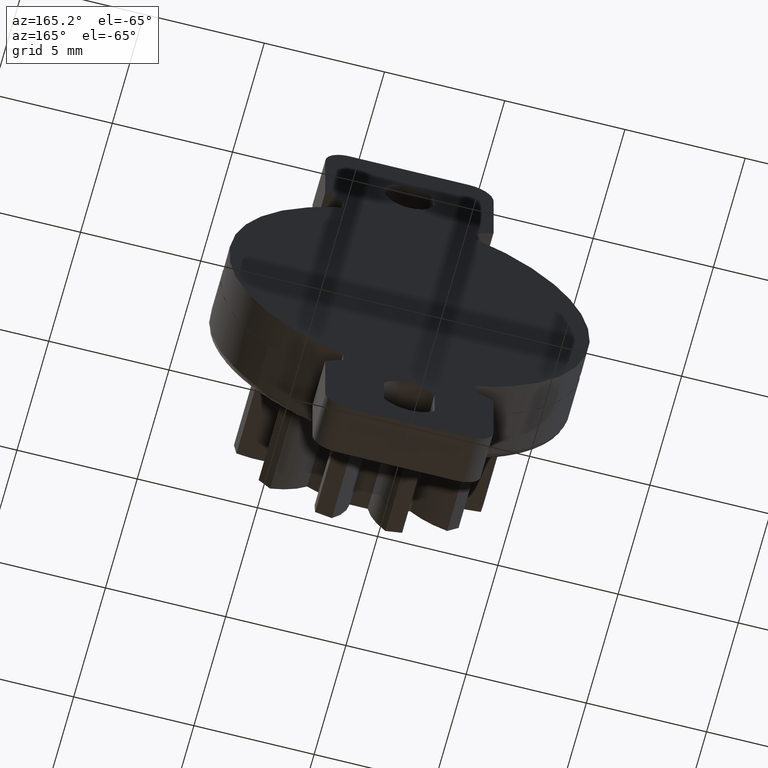
[diagram: clean part render]
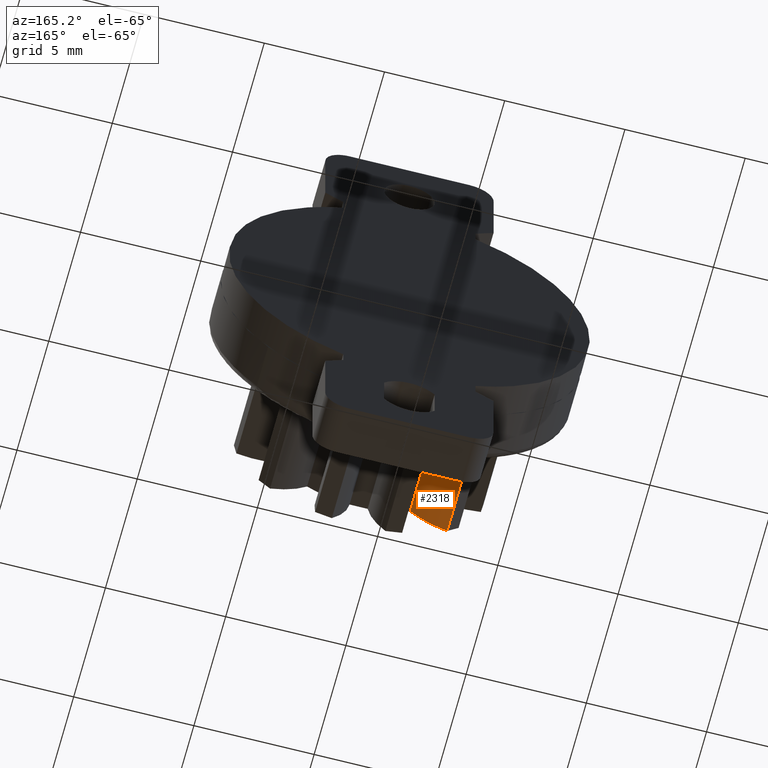
[diagram: same view with one face highlighted and labeled with its STEP entity id]
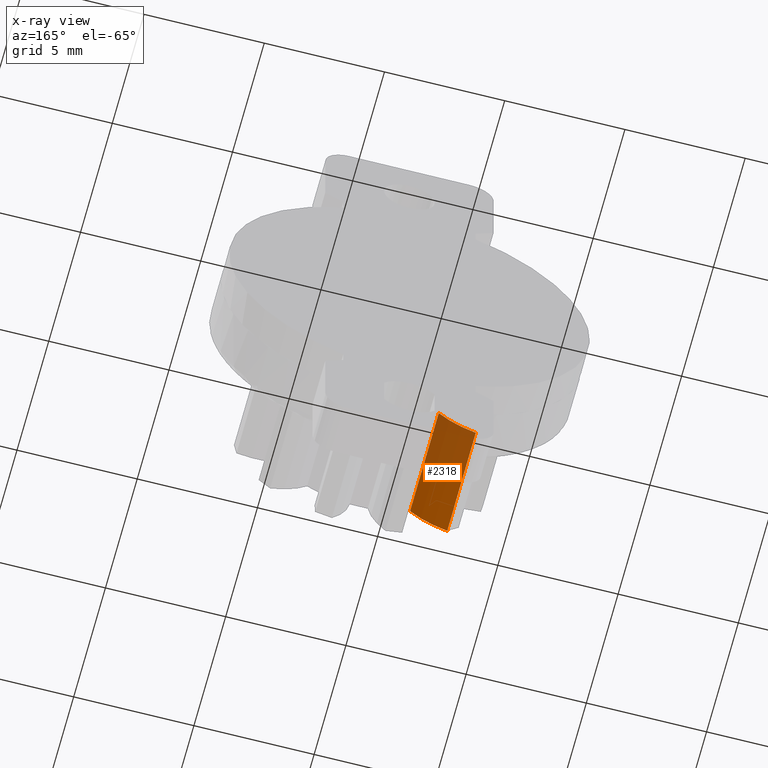
[diagram: x-ray of the same camera — body ghosted, the highlighted face saturated]
A machine part, auxiliary view. The second image highlights one B-rep face of the part: STEP entity #2318.
The next image is the same camera in x-ray: the body ghosted, the highlighted face saturated — about 54% of this face is hidden behind the body in this view.
In plain terms, the highlighted face is a freeform B-spline surface patch.
Its self-contained STEP definition (entity closure, byte-faithful):
#659=CARTESIAN_POINT('',(-3.682784727053384,-8.0,-3.671116540534010));
#660=VERTEX_POINT('',#659);
#674=CARTESIAN_POINT('',(-2.143879086929061,-8.0,-2.638897963284715));
#675=VERTEX_POINT('',#674);
#676=CARTESIAN_POINT('',(-3.682784727053387,-8.0,-3.671116540534007));
#677=CARTESIAN_POINT('',(-2.754975716603339,-8.0,-3.391096041539490));
#678=CARTESIAN_POINT('',(-2.143879073111832,-8.0,-2.638897974510035));
#686=(BOUNDED_CURVE()B_SPLINE_CURVE(2,(#676,#677,#678),.UNSPECIFIED.,.F.,.U.)CURVE()GEOMETRIC_REPRESENTATION_ITEM()QUASI_UNIFORM_CURVE()RATIONAL_B_SPLINE_CURVE((1.0,0.956011273868735,1.0))REPRESENTATION_ITEM(''));
#687=EDGE_CURVE('',#660,#675,#686,.T.);
#1393=CARTESIAN_POINT('',(-2.143879086929061,-3.499999999999950,-2.638897963284715));
#1394=VERTEX_POINT('',#1393);
#1408=CARTESIAN_POINT('',(-3.682784727053384,-3.499999999999950,-3.671116540534010));
#1409=VERTEX_POINT('',#1408);
#1410=CARTESIAN_POINT('',(-3.682784727053387,-3.499999999999950,-3.671116540534007));
#1411=CARTESIAN_POINT('',(-2.754975716603339,-3.499999999999950,-3.391096041539490));
#1412=CARTESIAN_POINT('',(-2.143879073111832,-3.499999999999950,-2.638897974510035));
#1420=(BOUNDED_CURVE()B_SPLINE_CURVE(2,(#1410,#1411,#1412),.UNSPECIFIED.,.F.,.U.)CURVE()GEOMETRIC_REPRESENTATION_ITEM()QUASI_UNIFORM_CURVE()RATIONAL_B_SPLINE_CURVE((1.0,0.956011273868735,1.0))REPRESENTATION_ITEM(''));
#1421=EDGE_CURVE('',#1409,#1394,#1420,.T.);
#2284=CARTESIAN_POINT('',(-2.143879086929061,-3.499999999999950,-2.638897963284715));
#2285=CARTESIAN_POINT('',(-2.143879086929061,-8.0,-2.638897963284715));
#2286=QUASI_UNIFORM_CURVE('',1,(#2284,#2285),.UNSPECIFIED.,.F.,.U.);
#2287=EDGE_CURVE('',#1394,#675,#2286,.T.);
#2294=CARTESIAN_POINT('',(-2.086866543563632,-3.387499999999948,-2.566592841290064));
#2295=CARTESIAN_POINT('',(-2.086866543563632,-8.115312500000002,-2.566592841290064));
#2296=CARTESIAN_POINT('',(-2.737751941300463,-3.387499999999948,-3.417282071161380));
#2297=CARTESIAN_POINT('',(-2.737751941300463,-8.115312500000002,-3.417282071161380));
#2298=CARTESIAN_POINT('',(-3.771831421896269,-3.387499999999948,-3.696573307359002));
#2299=CARTESIAN_POINT('',(-3.771831421896269,-8.115312500000002,-3.696573307359002));
#2307=(BOUNDED_SURFACE()B_SPLINE_SURFACE(1,2,((#2294,#2296,#2298),(#2295,#2297,#2299)),.UNSPECIFIED.,.F.,.F.,.U.)B_SPLINE_SURFACE_WITH_KNOTS((2,2),(3,3),(0.0,4.727812500000054),(0.0,2.083975211491682),.UNSPECIFIED.)GEOMETRIC_REPRESENTATION_ITEM()RATIONAL_B_SPLINE_SURFACE(((0.997786540914082,0.942072450817485,0.991757776564649),(0.997786540914082,0.942072450817485,0.991757776564649)))REPRESENTATION_ITEM('')SURFACE());
#2308=ORIENTED_EDGE('',*,*,#687,.F.);
#2309=CARTESIAN_POINT('',(-3.682784727053384,-3.499999999999950,-3.671116540534010));
#2310=CARTESIAN_POINT('',(-3.682784727053384,-8.0,-3.671116540534010));
#2311=QUASI_UNIFORM_CURVE('',1,(#2309,#2310),.UNSPECIFIED.,.F.,.U.);
#2312=EDGE_CURVE('',#1409,#660,#2311,.T.);
#2313=ORIENTED_EDGE('',*,*,#2312,.F.);
#2314=ORIENTED_EDGE('',*,*,#1421,.T.);
#2315=ORIENTED_EDGE('',*,*,#2287,.T.);
#2316=EDGE_LOOP('',(#2308,#2313,#2314,#2315));
#2317=FACE_OUTER_BOUND('',#2316,.T.);
#2318=ADVANCED_FACE('',(#2317),#2307,.T.);